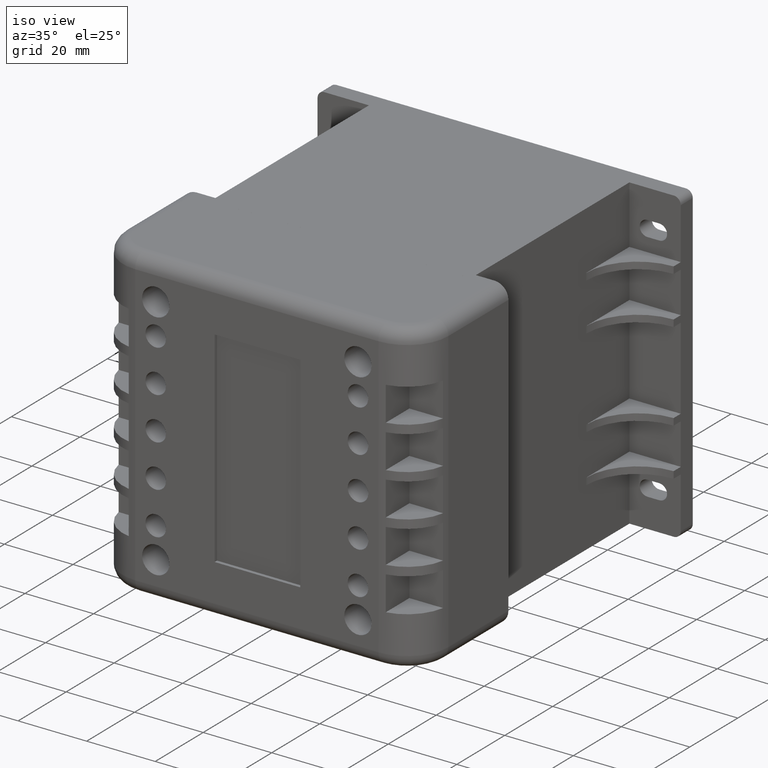
[diagram: clean part render]
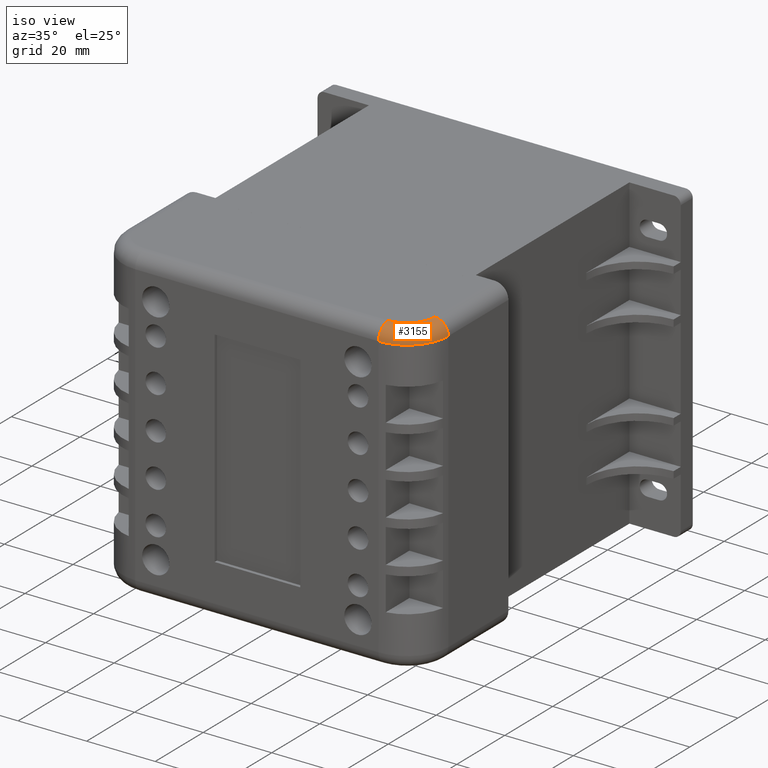
[diagram: same view with one face highlighted and labeled with its STEP entity id]
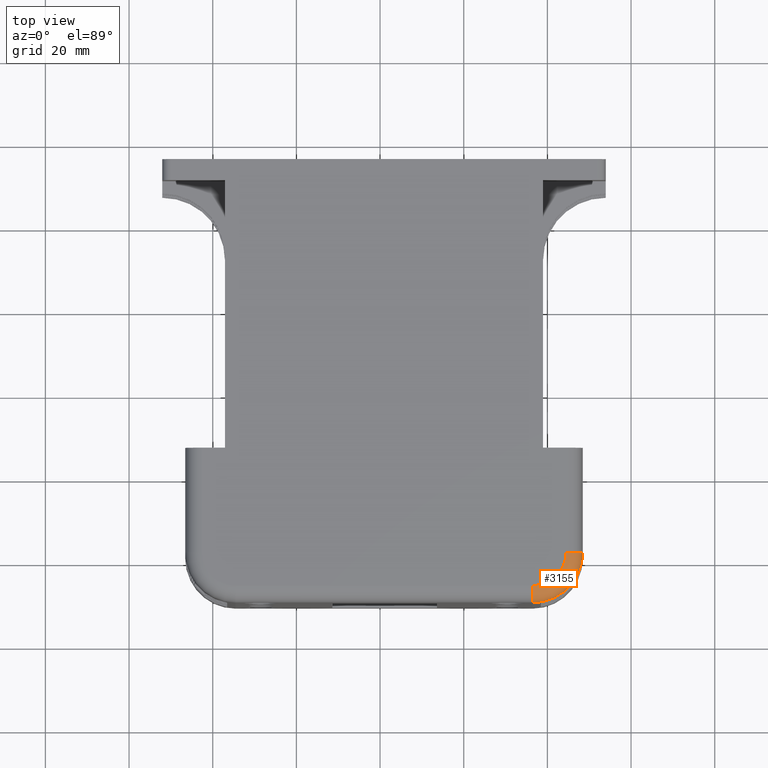
[diagram: same view with one face highlighted and labeled with its STEP entity id]
A machine part, iso view. The second image highlights one B-rep face of the part: STEP entity #3155.
A second angle (top view) of the same face is appended — the face is thin or edge-on in the first view.
In plain terms, the highlighted toroidal blend (fillet) surface has major radius 8 mm and minor (blend) radius 4 mm.
Its self-contained STEP definition (entity closure, byte-faithful):
#25=TOROIDAL_SURFACE('',#3495,8.,4.);
#109=CIRCLE('',#3494,4.);
#110=CIRCLE('',#3496,4.);
#111=CIRCLE('',#3497,12.);
#112=CIRCLE('',#3498,8.);
#286=FACE_OUTER_BOUND('',#476,.T.);
#476=EDGE_LOOP('',(#2134,#2135,#2136,#2137));
#1327=VERTEX_POINT('',#4858);
#1328=VERTEX_POINT('',#4860);
#1329=VERTEX_POINT('',#4864);
#1330=VERTEX_POINT('',#4865);
#1637=EDGE_CURVE('',#1327,#1328,#109,.T.);
#1639=EDGE_CURVE('',#1329,#1330,#110,.T.);
#1640=EDGE_CURVE('',#1330,#1328,#111,.T.);
#1641=EDGE_CURVE('',#1327,#1329,#112,.T.);
#2134=ORIENTED_EDGE('',*,*,#1639,.T.);
#2135=ORIENTED_EDGE('',*,*,#1640,.T.);
#2136=ORIENTED_EDGE('',*,*,#1637,.F.);
#2137=ORIENTED_EDGE('',*,*,#1641,.T.);
#3155=ADVANCED_FACE('',(#286),#25,.T.);
#3494=AXIS2_PLACEMENT_3D('',#4861,#3971,#3972);
#3495=AXIS2_PLACEMENT_3D('',#4863,#3974,#3975);
#3496=AXIS2_PLACEMENT_3D('',#4866,#3976,#3977);
#3497=AXIS2_PLACEMENT_3D('',#4867,#3978,#3979);
#3498=AXIS2_PLACEMENT_3D('',#4868,#3980,#3981);
#3971=DIRECTION('center_axis',(0.,-1.,0.));
#3972=DIRECTION('ref_axis',(0.,0.,1.));
#3974=DIRECTION('center_axis',(0.,0.,-1.));
#3975=DIRECTION('ref_axis',(-1.,0.,0.));
#3976=DIRECTION('center_axis',(-1.,0.,0.));
#3977=DIRECTION('ref_axis',(0.,0.,1.));
#3978=DIRECTION('center_axis',(0.,0.,1.));
#3979=DIRECTION('ref_axis',(-0.707106781186547,0.707106781186548,0.));
#3980=DIRECTION('center_axis',(0.,0.,-1.));
#3981=DIRECTION('ref_axis',(-0.707106781186547,0.707106781186548,0.));
#4858=CARTESIAN_POINT('',(-91.,25.,90.));
#4860=CARTESIAN_POINT('',(-95.,25.,86.));
#4861=CARTESIAN_POINT('Origin',(-91.,25.,86.));
#4863=CARTESIAN_POINT('Origin',(-83.,25.,86.));
#4864=CARTESIAN_POINT('',(-83.,33.,90.));
#4865=CARTESIAN_POINT('',(-83.,37.,86.));
#4866=CARTESIAN_POINT('Origin',(-83.,33.,86.));
#4867=CARTESIAN_POINT('Origin',(-83.,25.,86.));
#4868=CARTESIAN_POINT('Origin',(-83.,25.,90.));